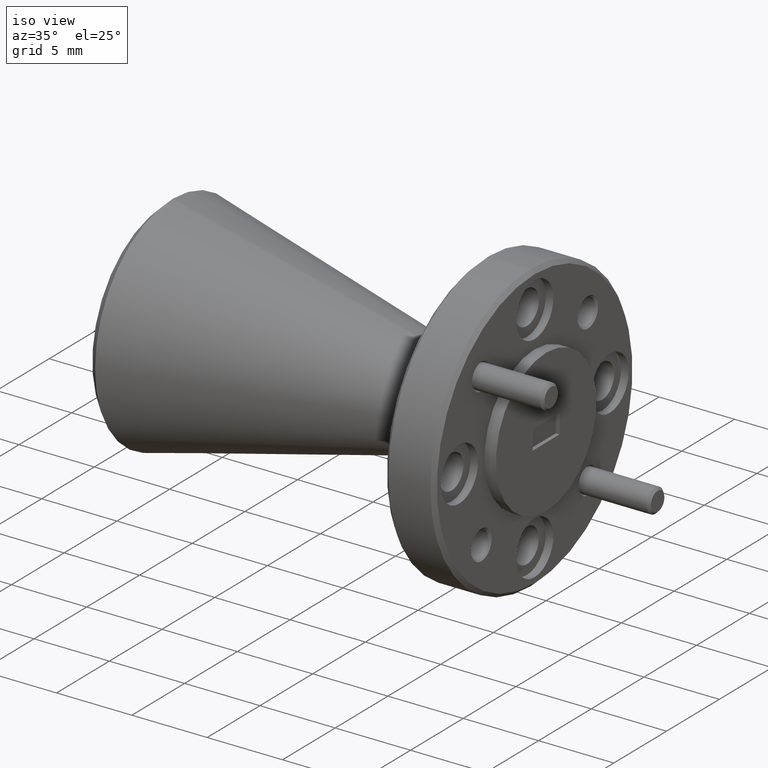
[diagram: clean part render]
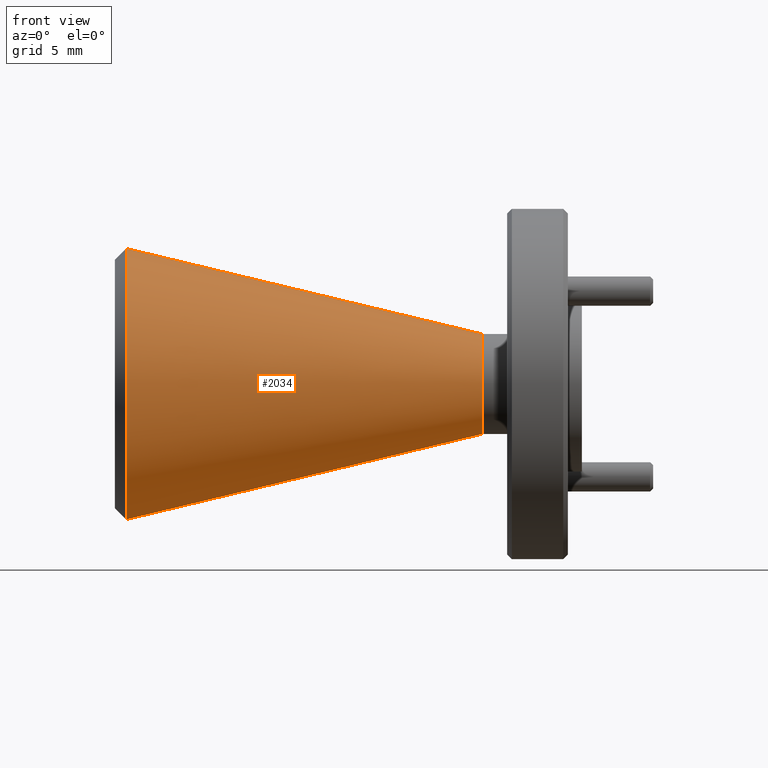
[diagram: tour spotlight — one face highlighted and labeled with its STEP entity id]
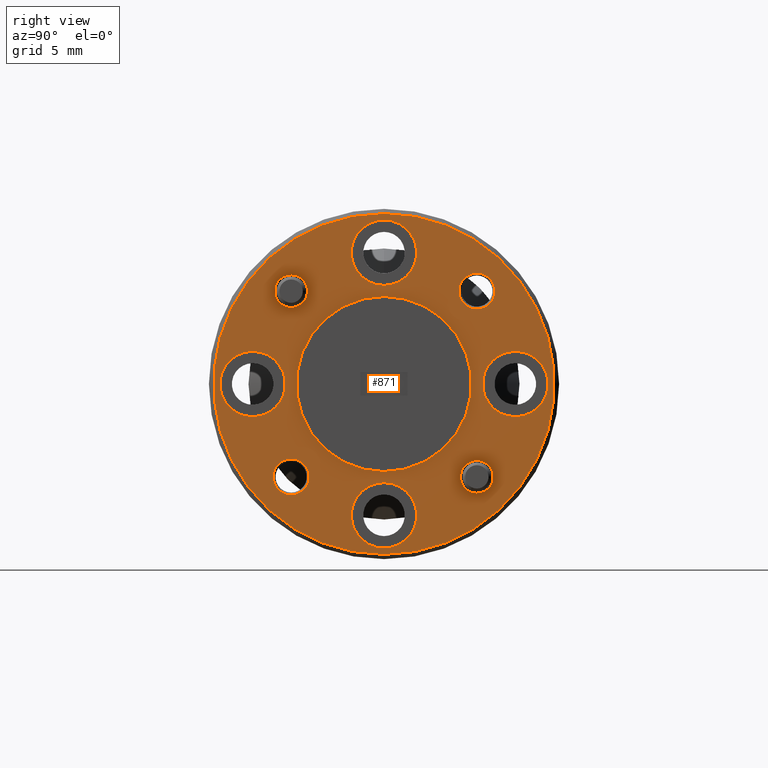
[diagram: tour spotlight — one face highlighted and labeled with its STEP entity id]
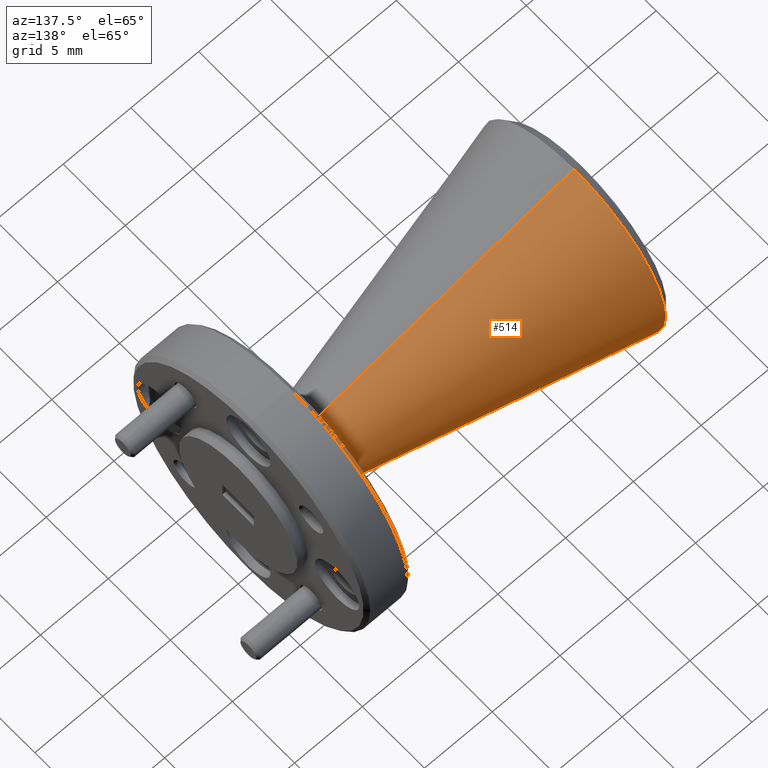
[diagram: tour spotlight — one face highlighted and labeled with its STEP entity id]
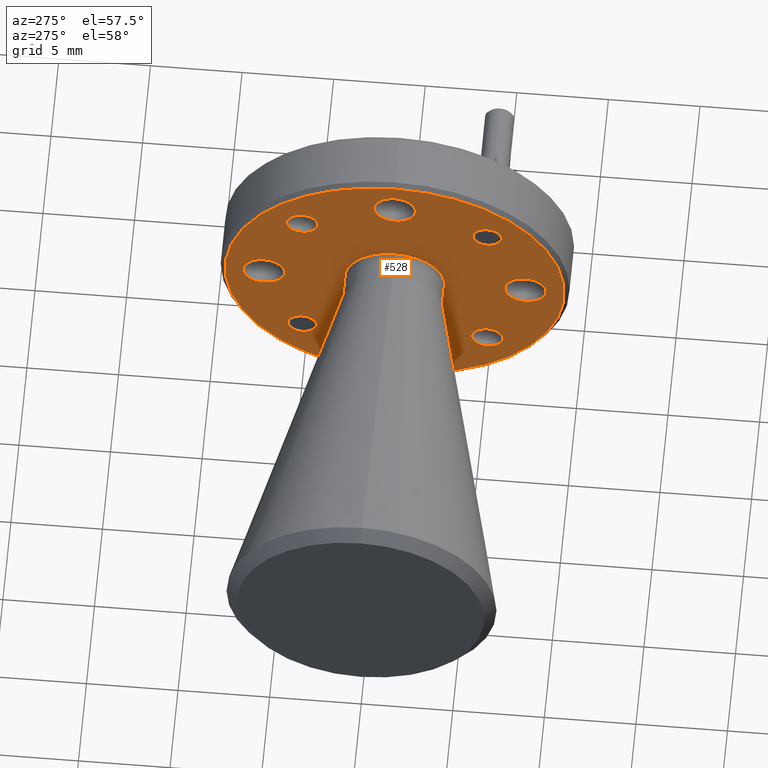
[diagram: tour spotlight — one face highlighted and labeled with its STEP entity id]
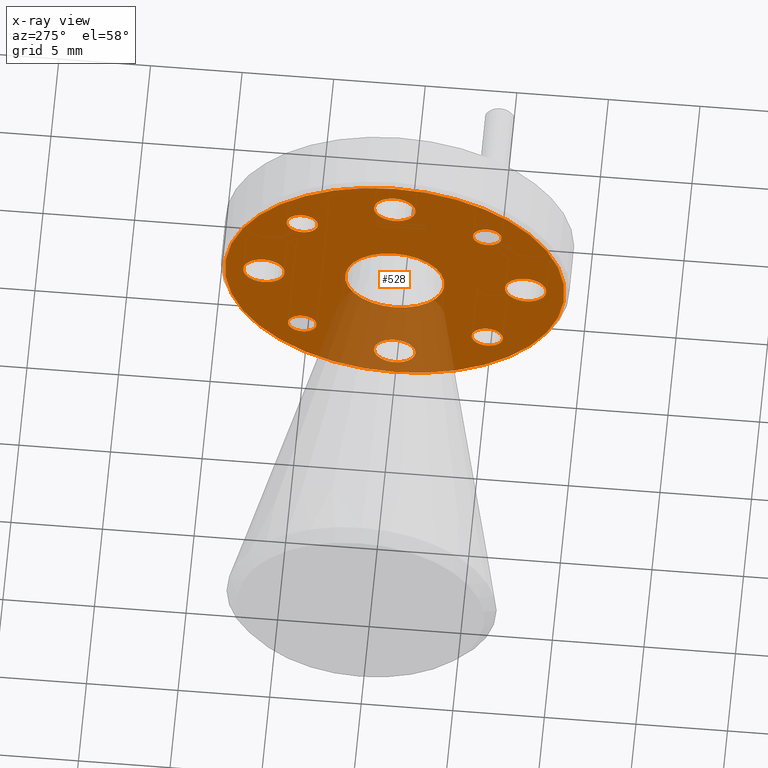
[diagram: x-ray of the same camera — body ghosted, this tour face saturated]
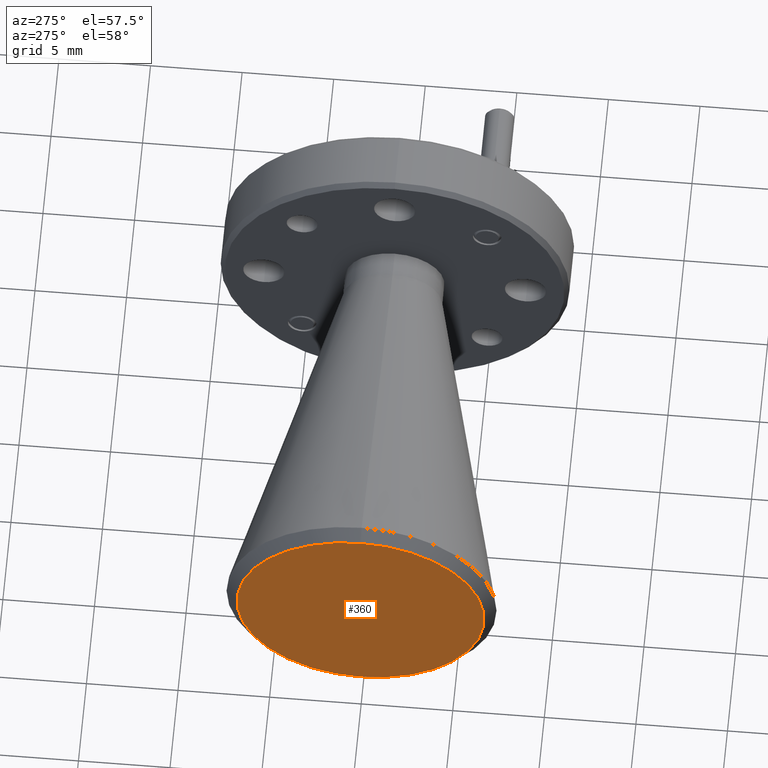
[diagram: tour spotlight — one face highlighted and labeled with its STEP entity id]
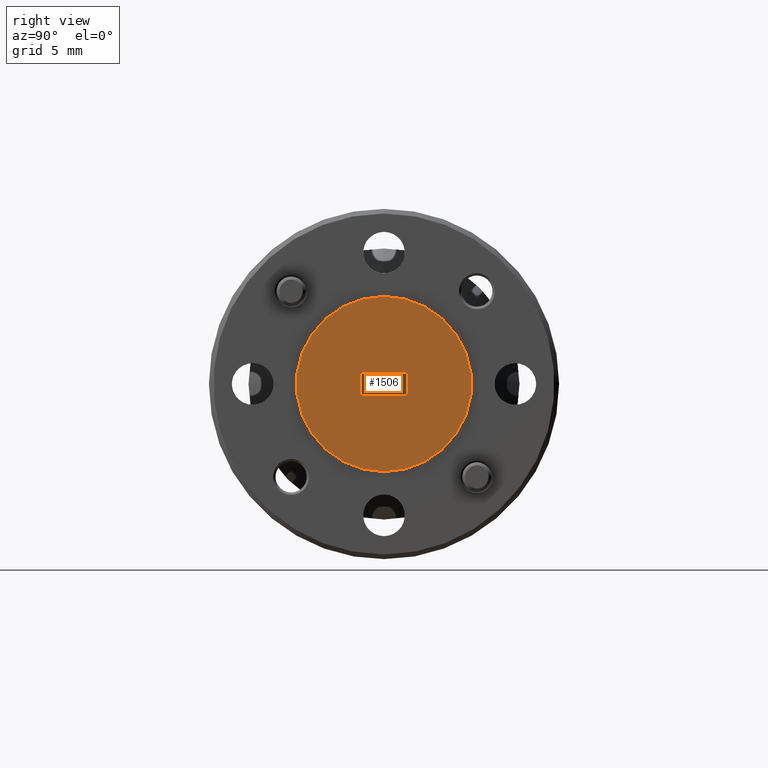
[diagram: tour spotlight — one face highlighted and labeled with its STEP entity id]
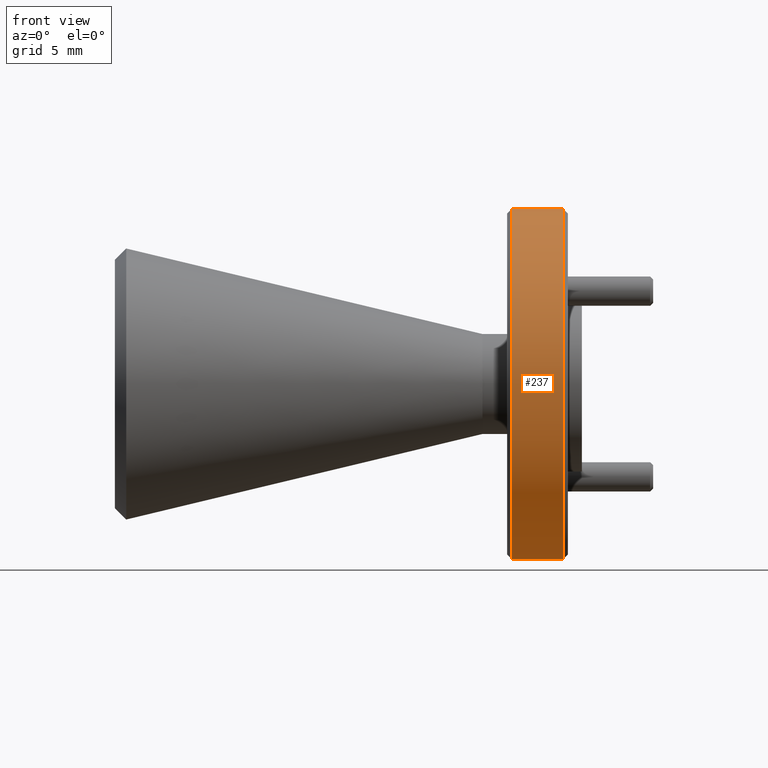
[diagram: tour spotlight — one face highlighted and labeled with its STEP entity id]
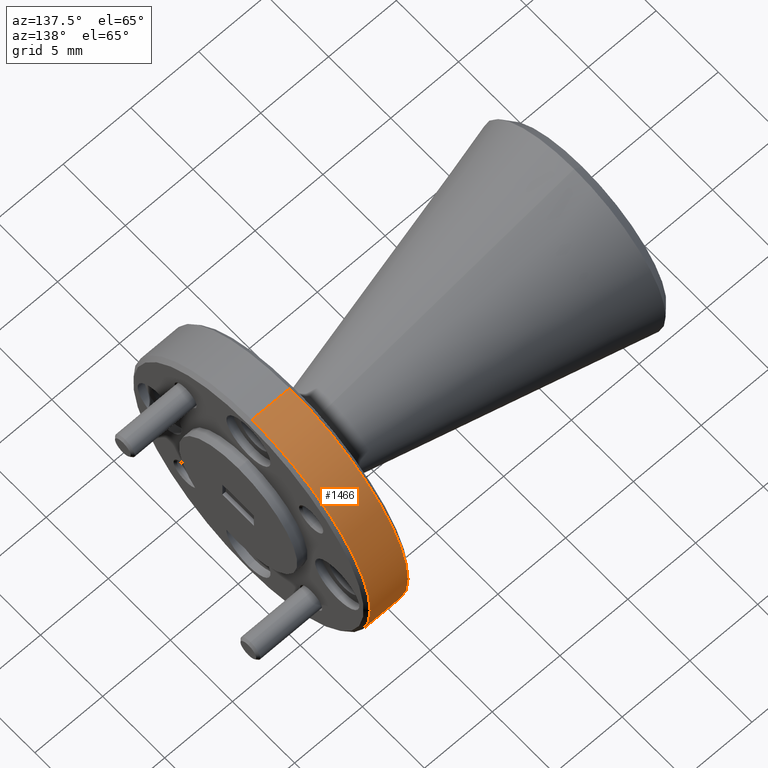
[diagram: tour spotlight — one face highlighted and labeled with its STEP entity id]
A machine part: a face-by-face anatomy tour. The part has 75 B-rep faces; the first image is the clean iso view, then the 8 largest visible faces are spotlighted one at a time (largest first), each with its STEP entity span.

Face 1 — front view, entity #2034. In plain terms, the highlighted conical surface has half-angle 13.5 deg.
Definition (entity closure, byte-faithful):
#200 = DIRECTION ( 'NONE',  ( 0.0000000000000000000, 0.0000000000000000000, 1.000000000000000000 ) ) ;
#369 = CARTESIAN_POINT ( 'NONE',  ( -0.2127583434529240500, 1.310372075087667600E-017, 0.1069999999999999800 ) ) ;
#414 = CARTESIAN_POINT ( 'NONE',  ( -0.2127583434529240500, 0.0000000000000000000, -0.1069999999999999800 ) ) ;
#424 = AXIS2_PLACEMENT_3D ( 'NONE', #1684, #2021, #200 ) ;
#462 = DIRECTION ( 'NONE',  ( -0.9723699203976756700, 2.858881176219283900E-017, -0.2334453638559091700 ) ) ;
#506 = VERTEX_POINT ( 'NONE', #1768 ) ;
#532 = ORIENTED_EDGE ( 'NONE', *, *, #1520, .T. ) ;
#586 = DIRECTION ( 'NONE',  ( -0.9723699203976756700, 0.0000000000000000000, 0.2334453638559091700 ) ) ;
#591 = CARTESIAN_POINT ( 'NONE',  ( -0.2127583434529240500, 0.0000000000000000000, 0.1069999999999999800 ) ) ;
#601 = VECTOR ( 'NONE', #462, 39.37007874015748100 ) ;
#750 = CARTESIAN_POINT ( 'NONE',  ( -0.2127583434529240500, 0.0000000000000000000, 0.0000000000000000000 ) ) ;
#764 = CARTESIAN_POINT ( 'NONE',  ( -0.9758079881779012600, 0.0000000000000000000, 0.0000000000000000000 ) ) ;
#778 = DIRECTION ( 'NONE',  ( 0.0000000000000000000, 0.0000000000000000000, -1.000000000000000000 ) ) ;
#945 = VERTEX_POINT ( 'NONE', #1239 ) ;
#1219 = CONICAL_SURFACE ( 'NONE', #424, 0.1069999999999999800, 0.2356194490192384000 ) ;
#1239 = CARTESIAN_POINT ( 'NONE',  ( -0.9758079881779012600, 0.0000000000000000000, 0.2901920118220990800 ) ) ;
#1278 = DIRECTION ( 'NONE',  ( 1.000000000000000000, -0.0000000000000000000, -0.0000000000000000000 ) ) ;
#1385 = AXIS2_PLACEMENT_3D ( 'NONE', #764, #1595, #1587 ) ;
#1392 = ORIENTED_EDGE ( 'NONE', *, *, #1882, .F. ) ;
#1424 = AXIS2_PLACEMENT_3D ( 'NONE', #750, #1278, #778 ) ;
#1426 = VERTEX_POINT ( 'NONE', #369 ) ;
#1473 = EDGE_LOOP ( 'NONE', ( #1392, #1925, #532, #1845 ) ) ;
#1478 = EDGE_CURVE ( 'NONE', #1426, #1531, #1887, .T. ) ;
#1498 = EDGE_CURVE ( 'NONE', #945, #506, #2043, .T. ) ;
#1520 = EDGE_CURVE ( 'NONE', #1426, #945, #1781, .T. ) ;
#1531 = VERTEX_POINT ( 'NONE', #414 ) ;
#1587 = DIRECTION ( 'NONE',  ( 0.0000000000000000000, 0.0000000000000000000, -1.000000000000000000 ) ) ;
#1595 = DIRECTION ( 'NONE',  ( 1.000000000000000000, -0.0000000000000000000, -0.0000000000000000000 ) ) ;
#1611 = VECTOR ( 'NONE', #586, 39.37007874015748100 ) ;
#1639 = CARTESIAN_POINT ( 'NONE',  ( -0.2127583434529240500, 1.310372075087667600E-017, -0.1069999999999999800 ) ) ;
#1684 = CARTESIAN_POINT ( 'NONE',  ( -0.2127583434529240500, 0.0000000000000000000, 0.0000000000000000000 ) ) ;
#1768 = CARTESIAN_POINT ( 'NONE',  ( -0.9758079881779012600, 3.553827184160644900E-017, -0.2901920118220990800 ) ) ;
#1781 = LINE ( 'NONE', #591, #1611 ) ;
#1795 = FACE_OUTER_BOUND ( 'NONE', #1473, .T. ) ;
#1845 = ORIENTED_EDGE ( 'NONE', *, *, #1498, .T. ) ;
#1882 = EDGE_CURVE ( 'NONE', #1531, #506, #2115, .T. ) ;
#1887 = CIRCLE ( 'NONE', #1424, 0.1069999999999999800 ) ;
#1925 = ORIENTED_EDGE ( 'NONE', *, *, #1478, .F. ) ;
#2021 = DIRECTION ( 'NONE',  ( -1.000000000000000000, 0.0000000000000000000, 0.0000000000000000000 ) ) ;
#2034 = ADVANCED_FACE ( 'NONE', ( #1795 ), #1219, .T. ) ;
#2043 = CIRCLE ( 'NONE', #1385, 0.2901920118220990800 ) ;
#2115 = LINE ( 'NONE', #1639, #601 ) ;

Face 2 — right view, entity #871. In plain terms, the highlighted planar face has unit normal (1, 0, -0).
Definition (entity closure, byte-faithful):
#5 = DIRECTION ( 'NONE',  ( 1.000000000000000000, 0.0000000000000000000, 0.0000000000000000000 ) ) ;
#35 = DIRECTION ( 'NONE',  ( 1.000000000000000000, -0.0000000000000000000, -0.0000000000000000000 ) ) ;
#62 = CARTESIAN_POINT ( 'NONE',  ( -0.02999999999999999500, -0.2812500000000000600, 0.0000000000000000000 ) ) ;
#72 = AXIS2_PLACEMENT_3D ( 'NONE', #1594, #2078, #1786 ) ;
#77 = CIRCLE ( 'NONE', #1546, 0.07000000000000000700 ) ;
#93 = EDGE_LOOP ( 'NONE', ( #633, #1059 ) ) ;
#125 = ORIENTED_EDGE ( 'NONE', *, *, #1314, .F. ) ;
#141 = DIRECTION ( 'NONE',  ( 0.0000000000000000000, 0.0000000000000000000, -1.000000000000000000 ) ) ;
#142 = VERTEX_POINT ( 'NONE', #1631 ) ;
#144 = VERTEX_POINT ( 'NONE', #2101 ) ;
#146 = VERTEX_POINT ( 'NONE', #954 ) ;
#156 = CARTESIAN_POINT ( 'NONE',  ( -0.02999999999999999500, 0.0000000000000000000, -0.2812500000000000600 ) ) ;
#161 = CARTESIAN_POINT ( 'NONE',  ( -0.02999999999999999500, 0.2812500000000000600, -0.07000000000000000700 ) ) ;
#162 = CIRCLE ( 'NONE', #1038, 0.07000000000000000700 ) ;
#170 = VERTEX_POINT ( 'NONE', #2107 ) ;
#183 = EDGE_CURVE ( 'NONE', #794, #263, #1316, .T. ) ;
#215 = CARTESIAN_POINT ( 'NONE',  ( -0.02999999999999992600, 0.1988737822087164900, 0.1603737822087164300 ) ) ;
#242 = CARTESIAN_POINT ( 'NONE',  ( -0.02999999999999999500, -0.1988737822087164900, 0.1988737822087164600 ) ) ;
#243 = VERTEX_POINT ( 'NONE', #1491 ) ;
#258 = CARTESIAN_POINT ( 'NONE',  ( -0.02999999999999992600, 0.1988737822087164900, 0.2373737822087164700 ) ) ;
#263 = VERTEX_POINT ( 'NONE', #161 ) ;
#282 = CARTESIAN_POINT ( 'NONE',  ( -0.02999999999999999500, 0.1988737822087164900, -0.2338737822087165200 ) ) ;
#293 = DIRECTION ( 'NONE',  ( 0.0000000000000000000, 0.0000000000000000000, -1.000000000000000000 ) ) ;
#312 = DIRECTION ( 'NONE',  ( 1.000000000000000000, 0.0000000000000000000, 0.0000000000000000000 ) ) ;
#326 = DIRECTION ( 'NONE',  ( 1.000000000000000000, 0.0000000000000000000, 0.0000000000000000000 ) ) ;
#329 = DIRECTION ( 'NONE',  ( 0.0000000000000000000, 0.0000000000000000000, -1.000000000000000000 ) ) ;
#331 = FACE_OUTER_BOUND ( 'NONE', #1141, .T. ) ;
#347 = EDGE_CURVE ( 'NONE', #1395, #1168, #1834, .T. ) ;
#362 = CARTESIAN_POINT ( 'NONE',  ( -0.02999999999999992600, 0.1988737822087164900, 0.1988737822087164600 ) ) ;
#364 = EDGE_LOOP ( 'NONE', ( #2058, #551 ) ) ;
#368 = DIRECTION ( 'NONE',  ( 0.0000000000000000000, 0.0000000000000000000, -1.000000000000000000 ) ) ;
#373 = DIRECTION ( 'NONE',  ( 1.000000000000000000, -0.0000000000000000000, -0.0000000000000000000 ) ) ;
#375 = CARTESIAN_POINT ( 'NONE',  ( -0.02999999999999992600, 0.1988737822087164900, 0.1988737822087164600 ) ) ;
#383 = FACE_BOUND ( 'NONE', #93, .T. ) ;
#396 = EDGE_CURVE ( 'NONE', #1193, #1682, #1963, .T. ) ;
#397 = DIRECTION ( 'NONE',  ( 1.000000000000000000, 0.0000000000000000000, -0.0000000000000000000 ) ) ;
#415 = ORIENTED_EDGE ( 'NONE', *, *, #396, .F. ) ;
#425 = AXIS2_PLACEMENT_3D ( 'NONE', #585, #897, #1868 ) ;
#435 = CIRCLE ( 'NONE', #548, 0.03500000000000000300 ) ;
#453 = DIRECTION ( 'NONE',  ( 0.0000000000000000000, 0.0000000000000000000, -1.000000000000000000 ) ) ;
#461 = EDGE_CURVE ( 'NONE', #142, #146, #540, .T. ) ;
#474 = EDGE_LOOP ( 'NONE', ( #2051, #125 ) ) ;
#479 = AXIS2_PLACEMENT_3D ( 'NONE', #992, #312, #2110 ) ;
#481 = DIRECTION ( 'NONE',  ( 1.000000000000000000, -0.0000000000000000000, -0.0000000000000000000 ) ) ;
#498 = ORIENTED_EDGE ( 'NONE', *, *, #1176, .F. ) ;
#508 = CARTESIAN_POINT ( 'NONE',  ( -0.02999999999999999500, -0.1988737822087164900, 0.1638737822087164600 ) ) ;
#519 = ORIENTED_EDGE ( 'NONE', *, *, #1647, .F. ) ;
#527 = AXIS2_PLACEMENT_3D ( 'NONE', #242, #35, #564 ) ;
#538 = FACE_BOUND ( 'NONE', #775, .T. ) ;
#540 = CIRCLE ( 'NONE', #425, 0.3650000000000002100 ) ;
#548 = AXIS2_PLACEMENT_3D ( 'NONE', #1930, #947, #293 ) ;
#551 = ORIENTED_EDGE ( 'NONE', *, *, #1590, .F. ) ;
#564 = DIRECTION ( 'NONE',  ( 0.0000000000000000000, 0.0000000000000000000, -1.000000000000000000 ) ) ;
#566 = DIRECTION ( 'NONE',  ( 0.0000000000000000000, 0.0000000000000000000, -1.000000000000000000 ) ) ;
#568 = FACE_BOUND ( 'NONE', #474, .T. ) ;
#573 = VERTEX_POINT ( 'NONE', #926 ) ;
#584 = VERTEX_POINT ( 'NONE', #2089 ) ;
#585 = CARTESIAN_POINT ( 'NONE',  ( -0.02999999999999999500, 0.0000000000000000000, 0.0000000000000000000 ) ) ;
#610 = EDGE_CURVE ( 'NONE', #243, #1112, #1591, .T. ) ;
#617 = EDGE_CURVE ( 'NONE', #1748, #1940, #957, .T. ) ;
#633 = ORIENTED_EDGE ( 'NONE', *, *, #1599, .F. ) ;
#646 = CARTESIAN_POINT ( 'NONE',  ( -0.02999999999999999500, -0.2812500000000000600, 0.0000000000000000000 ) ) ;
#659 = CARTESIAN_POINT ( 'NONE',  ( -0.02999999999999999500, 8.572527594031468900E-018, 0.3512500000000000600 ) ) ;
#673 = FACE_BOUND ( 'NONE', #875, .T. ) ;
#674 = CIRCLE ( 'NONE', #1345, 0.1874999999999999700 ) ;
#683 = VERTEX_POINT ( 'NONE', #1635 ) ;
#688 = VERTEX_POINT ( 'NONE', #282 ) ;
#691 = AXIS2_PLACEMENT_3D ( 'NONE', #820, #481, #2149 ) ;
#698 = AXIS2_PLACEMENT_3D ( 'NONE', #2008, #2002, #1030 ) ;
#736 = ORIENTED_EDGE ( 'NONE', *, *, #762, .T. ) ;
#741 = CARTESIAN_POINT ( 'NONE',  ( -0.02999999999999992600, -0.1988737822087164900, -0.1988737822087165200 ) ) ;
#752 = AXIS2_PLACEMENT_3D ( 'NONE', #375, #1709, #1073 ) ;
#762 = EDGE_CURVE ( 'NONE', #146, #142, #2116, .T. ) ;
#775 = EDGE_LOOP ( 'NONE', ( #519, #2136 ) ) ;
#789 = CARTESIAN_POINT ( 'NONE',  ( -0.02999999999999992600, -0.1988737822087164900, -0.1603737822087165100 ) ) ;
#794 = VERTEX_POINT ( 'NONE', #1980 ) ;
#795 = ORIENTED_EDGE ( 'NONE', *, *, #610, .F. ) ;
#807 = FACE_BOUND ( 'NONE', #364, .T. ) ;
#820 = CARTESIAN_POINT ( 'NONE',  ( -0.02999999999999999500, 0.1988737822087164900, -0.1988737822087165200 ) ) ;
#824 = ORIENTED_EDGE ( 'NONE', *, *, #1100, .F. ) ;
#833 = FACE_BOUND ( 'NONE', #1494, .T. ) ;
#851 = DIRECTION ( 'NONE',  ( 1.000000000000000000, 0.0000000000000000000, 0.0000000000000000000 ) ) ;
#853 = CIRCLE ( 'NONE', #752, 0.03850000000000001300 ) ;
#871 = ADVANCED_FACE ( 'NONE', ( #673, #1282, #1257, #383, #833, #568, #1832, #807, #331, #538 ), #1167, .T. ) ;
#873 = DIRECTION ( 'NONE',  ( 0.0000000000000000000, 0.0000000000000000000, -1.000000000000000000 ) ) ;
#875 = EDGE_LOOP ( 'NONE', ( #795, #1792 ) ) ;
#897 = DIRECTION ( 'NONE',  ( 1.000000000000000000, -0.0000000000000000000, -0.0000000000000000000 ) ) ;
#911 = DIRECTION ( 'NONE',  ( 1.000000000000000000, -0.0000000000000000000, -0.0000000000000000000 ) ) ;
#915 = EDGE_CURVE ( 'NONE', #1767, #573, #1363, .T. ) ;
#926 = CARTESIAN_POINT ( 'NONE',  ( -0.02999999999999999500, -0.1988737822087164900, 0.2338737822087164600 ) ) ;
#947 = DIRECTION ( 'NONE',  ( 1.000000000000000000, -0.0000000000000000000, -0.0000000000000000000 ) ) ;
#954 = CARTESIAN_POINT ( 'NONE',  ( -0.02999999999999999500, 4.531193156845207900E-017, -0.3650000000000002100 ) ) ;
#957 = CIRCLE ( 'NONE', #1507, 0.07000000000000000700 ) ;
#981 = CARTESIAN_POINT ( 'NONE',  ( -0.02999999999999999500, 0.0000000000000000000, 0.0000000000000000000 ) ) ;
#992 = CARTESIAN_POINT ( 'NONE',  ( -0.02999999999999999500, 0.0000000000000000000, -0.2812500000000000600 ) ) ;
#1029 = CIRCLE ( 'NONE', #1032, 0.1874999999999999700 ) ;
#1030 = DIRECTION ( 'NONE',  ( 0.0000000000000000000, 0.0000000000000000000, -1.000000000000000000 ) ) ;
#1031 = EDGE_LOOP ( 'NONE', ( #1421, #824 ) ) ;
#1032 = AXIS2_PLACEMENT_3D ( 'NONE', #981, #1960, #1484 ) ;
#1038 = AXIS2_PLACEMENT_3D ( 'NONE', #62, #1425, #1429 ) ;
#1046 = EDGE_CURVE ( 'NONE', #683, #584, #2164, .T. ) ;
#1059 = ORIENTED_EDGE ( 'NONE', *, *, #183, .F. ) ;
#1061 = AXIS2_PLACEMENT_3D ( 'NONE', #741, #911, #566 ) ;
#1068 = DIRECTION ( 'NONE',  ( -0.0000000000000000000, 0.0000000000000000000, -1.000000000000000000 ) ) ;
#1073 = DIRECTION ( 'NONE',  ( 0.0000000000000000000, 0.0000000000000000000, -1.000000000000000000 ) ) ;
#1100 = EDGE_CURVE ( 'NONE', #584, #683, #1608, .T. ) ;
#1110 = EDGE_CURVE ( 'NONE', #144, #688, #1855, .T. ) ;
#1112 = VERTEX_POINT ( 'NONE', #659 ) ;
#1141 = EDGE_LOOP ( 'NONE', ( #2072, #736 ) ) ;
#1167 = PLANE ( 'NONE',  #1899 ) ;
#1168 = VERTEX_POINT ( 'NONE', #258 ) ;
#1176 = EDGE_CURVE ( 'NONE', #1940, #1748, #162, .T. ) ;
#1193 = VERTEX_POINT ( 'NONE', #1588 ) ;
#1196 = CARTESIAN_POINT ( 'NONE',  ( -0.02999999999999999500, -0.2812500000000000600, -0.07000000000000000700 ) ) ;
#1205 = EDGE_CURVE ( 'NONE', #1112, #243, #77, .T. ) ;
#1206 = DIRECTION ( 'NONE',  ( 0.0000000000000000000, 0.0000000000000000000, -1.000000000000000000 ) ) ;
#1210 = AXIS2_PLACEMENT_3D ( 'NONE', #1821, #373, #329 ) ;
#1225 = CARTESIAN_POINT ( 'NONE',  ( -0.02999999999999999500, 0.1874999999999999700, 0.0000000000000000000 ) ) ;
#1234 = CIRCLE ( 'NONE', #691, 0.03500000000000000300 ) ;
#1236 = AXIS2_PLACEMENT_3D ( 'NONE', #2098, #1955, #1467 ) ;
#1249 = AXIS2_PLACEMENT_3D ( 'NONE', #1663, #326, #1515 ) ;
#1257 = FACE_BOUND ( 'NONE', #1031, .T. ) ;
#1282 = FACE_BOUND ( 'NONE', #1627, .T. ) ;
#1300 = CARTESIAN_POINT ( 'NONE',  ( -0.02999999999999999500, 0.0000000000000000000, 0.0000000000000000000 ) ) ;
#1301 = EDGE_LOOP ( 'NONE', ( #2150, #2003 ) ) ;
#1314 = EDGE_CURVE ( 'NONE', #1168, #1395, #853, .T. ) ;
#1316 = CIRCLE ( 'NONE', #1249, 0.07000000000000000700 ) ;
#1345 = AXIS2_PLACEMENT_3D ( 'NONE', #1300, #1773, #453 ) ;
#1357 = CARTESIAN_POINT ( 'NONE',  ( -0.02999999999999999500, 0.0000000000000000000, 0.2812500000000000600 ) ) ;
#1363 = CIRCLE ( 'NONE', #527, 0.03500000000000000300 ) ;
#1374 = AXIS2_PLACEMENT_3D ( 'NONE', #1492, #1950, #141 ) ;
#1395 = VERTEX_POINT ( 'NONE', #215 ) ;
#1421 = ORIENTED_EDGE ( 'NONE', *, *, #1046, .F. ) ;
#1425 = DIRECTION ( 'NONE',  ( 1.000000000000000000, 0.0000000000000000000, 0.0000000000000000000 ) ) ;
#1429 = DIRECTION ( 'NONE',  ( 0.0000000000000000000, 0.0000000000000000000, -1.000000000000000000 ) ) ;
#1467 = DIRECTION ( 'NONE',  ( 0.0000000000000000000, 0.0000000000000000000, -1.000000000000000000 ) ) ;
#1484 = DIRECTION ( 'NONE',  ( 0.0000000000000000000, 0.0000000000000000000, -1.000000000000000000 ) ) ;
#1491 = CARTESIAN_POINT ( 'NONE',  ( -0.02999999999999999500, 0.0000000000000000000, 0.2112500000000000200 ) ) ;
#1492 = CARTESIAN_POINT ( 'NONE',  ( -0.02999999999999992600, -0.1988737822087164900, -0.1988737822087165200 ) ) ;
#1494 = EDGE_LOOP ( 'NONE', ( #415, #1994 ) ) ;
#1497 = CARTESIAN_POINT ( 'NONE',  ( -0.02999999999999999500, -0.2812500000000000600, 0.07000000000000000700 ) ) ;
#1501 = ORIENTED_EDGE ( 'NONE', *, *, #617, .F. ) ;
#1507 = AXIS2_PLACEMENT_3D ( 'NONE', #646, #1943, #1776 ) ;
#1515 = DIRECTION ( 'NONE',  ( 0.0000000000000000000, 0.0000000000000000000, -1.000000000000000000 ) ) ;
#1529 = DIRECTION ( 'NONE',  ( 1.000000000000000000, -0.0000000000000000000, -0.0000000000000000000 ) ) ;
#1546 = AXIS2_PLACEMENT_3D ( 'NONE', #1357, #851, #873 ) ;
#1588 = CARTESIAN_POINT ( 'NONE',  ( -0.02999999999999992600, -0.1988737822087164900, -0.2373737822087165200 ) ) ;
#1590 = EDGE_CURVE ( 'NONE', #573, #1767, #435, .T. ) ;
#1591 = CIRCLE ( 'NONE', #72, 0.07000000000000000700 ) ;
#1594 = CARTESIAN_POINT ( 'NONE',  ( -0.02999999999999999500, 0.0000000000000000000, 0.2812500000000000600 ) ) ;
#1599 = EDGE_CURVE ( 'NONE', #263, #794, #1989, .T. ) ;
#1608 = CIRCLE ( 'NONE', #1957, 0.07000000000000000700 ) ;
#1620 = VERTEX_POINT ( 'NONE', #1961 ) ;
#1627 = EDGE_LOOP ( 'NONE', ( #498, #1501 ) ) ;
#1631 = CARTESIAN_POINT ( 'NONE',  ( -0.02999999999999999500, 0.0000000000000000000, 0.3650000000000002100 ) ) ;
#1632 = CIRCLE ( 'NONE', #1374, 0.03850000000000001300 ) ;
#1635 = CARTESIAN_POINT ( 'NONE',  ( -0.02999999999999999500, 0.0000000000000000000, -0.3512500000000000600 ) ) ;
#1647 = EDGE_CURVE ( 'NONE', #170, #1620, #674, .T. ) ;
#1663 = CARTESIAN_POINT ( 'NONE',  ( -0.02999999999999999500, 0.2812500000000000600, 0.0000000000000000000 ) ) ;
#1682 = VERTEX_POINT ( 'NONE', #789 ) ;
#1709 = DIRECTION ( 'NONE',  ( 1.000000000000000000, -0.0000000000000000000, -0.0000000000000000000 ) ) ;
#1748 = VERTEX_POINT ( 'NONE', #1497 ) ;
#1767 = VERTEX_POINT ( 'NONE', #508 ) ;
#1773 = DIRECTION ( 'NONE',  ( 1.000000000000000000, -0.0000000000000000000, -0.0000000000000000000 ) ) ;
#1776 = DIRECTION ( 'NONE',  ( 0.0000000000000000000, 0.0000000000000000000, -1.000000000000000000 ) ) ;
#1786 = DIRECTION ( 'NONE',  ( 0.0000000000000000000, 0.0000000000000000000, -1.000000000000000000 ) ) ;
#1792 = ORIENTED_EDGE ( 'NONE', *, *, #1205, .F. ) ;
#1799 = EDGE_CURVE ( 'NONE', #688, #144, #1234, .T. ) ;
#1821 = CARTESIAN_POINT ( 'NONE',  ( -0.02999999999999999500, 0.0000000000000000000, 0.0000000000000000000 ) ) ;
#1832 = FACE_BOUND ( 'NONE', #1301, .T. ) ;
#1834 = CIRCLE ( 'NONE', #2005, 0.03850000000000001300 ) ;
#1854 = EDGE_CURVE ( 'NONE', #1682, #1193, #1632, .T. ) ;
#1855 = CIRCLE ( 'NONE', #698, 0.03500000000000000300 ) ;
#1868 = DIRECTION ( 'NONE',  ( 0.0000000000000000000, 0.0000000000000000000, -1.000000000000000000 ) ) ;
#1890 = EDGE_CURVE ( 'NONE', #1620, #170, #1029, .T. ) ;
#1899 = AXIS2_PLACEMENT_3D ( 'NONE', #1225, #397, #1068 ) ;
#1930 = CARTESIAN_POINT ( 'NONE',  ( -0.02999999999999999500, -0.1988737822087164900, 0.1988737822087164600 ) ) ;
#1940 = VERTEX_POINT ( 'NONE', #1196 ) ;
#1943 = DIRECTION ( 'NONE',  ( 1.000000000000000000, 0.0000000000000000000, 0.0000000000000000000 ) ) ;
#1950 = DIRECTION ( 'NONE',  ( 1.000000000000000000, -0.0000000000000000000, -0.0000000000000000000 ) ) ;
#1955 = DIRECTION ( 'NONE',  ( 1.000000000000000000, 0.0000000000000000000, 0.0000000000000000000 ) ) ;
#1957 = AXIS2_PLACEMENT_3D ( 'NONE', #156, #5, #1206 ) ;
#1960 = DIRECTION ( 'NONE',  ( 1.000000000000000000, -0.0000000000000000000, -0.0000000000000000000 ) ) ;
#1961 = CARTESIAN_POINT ( 'NONE',  ( -0.02999999999999999500, 2.296212748401286800E-017, 0.1874999999999999700 ) ) ;
#1963 = CIRCLE ( 'NONE', #1061, 0.03850000000000001300 ) ;
#1980 = CARTESIAN_POINT ( 'NONE',  ( -0.02999999999999999500, 0.2812500000000000600, 0.07000000000000000700 ) ) ;
#1989 = CIRCLE ( 'NONE', #1236, 0.07000000000000000700 ) ;
#1994 = ORIENTED_EDGE ( 'NONE', *, *, #1854, .F. ) ;
#2002 = DIRECTION ( 'NONE',  ( 1.000000000000000000, -0.0000000000000000000, -0.0000000000000000000 ) ) ;
#2003 = ORIENTED_EDGE ( 'NONE', *, *, #1110, .F. ) ;
#2005 = AXIS2_PLACEMENT_3D ( 'NONE', #362, #1529, #368 ) ;
#2008 = CARTESIAN_POINT ( 'NONE',  ( -0.02999999999999999500, 0.1988737822087164900, -0.1988737822087165200 ) ) ;
#2051 = ORIENTED_EDGE ( 'NONE', *, *, #347, .F. ) ;
#2058 = ORIENTED_EDGE ( 'NONE', *, *, #915, .F. ) ;
#2072 = ORIENTED_EDGE ( 'NONE', *, *, #461, .T. ) ;
#2078 = DIRECTION ( 'NONE',  ( 1.000000000000000000, 0.0000000000000000000, 0.0000000000000000000 ) ) ;
#2089 = CARTESIAN_POINT ( 'NONE',  ( -0.02999999999999999500, 8.572527594031468900E-018, -0.2112500000000000200 ) ) ;
#2098 = CARTESIAN_POINT ( 'NONE',  ( -0.02999999999999999500, 0.2812500000000000600, 0.0000000000000000000 ) ) ;
#2101 = CARTESIAN_POINT ( 'NONE',  ( -0.02999999999999999500, 0.1988737822087164900, -0.1638737822087165100 ) ) ;
#2107 = CARTESIAN_POINT ( 'NONE',  ( -0.02999999999999999500, 0.0000000000000000000, -0.1874999999999999700 ) ) ;
#2110 = DIRECTION ( 'NONE',  ( 0.0000000000000000000, 0.0000000000000000000, -1.000000000000000000 ) ) ;
#2116 = CIRCLE ( 'NONE', #1210, 0.3650000000000002100 ) ;
#2136 = ORIENTED_EDGE ( 'NONE', *, *, #1890, .F. ) ;
#2149 = DIRECTION ( 'NONE',  ( 0.0000000000000000000, 0.0000000000000000000, -1.000000000000000000 ) ) ;
#2150 = ORIENTED_EDGE ( 'NONE', *, *, #1799, .F. ) ;
#2164 = CIRCLE ( 'NONE', #479, 0.07000000000000000700 ) ;

Face 3 — auxiliary view, entity #514. In plain terms, the highlighted conical surface has half-angle 13.5 deg.
Definition (entity closure, byte-faithful):
#126 = ORIENTED_EDGE ( 'NONE', *, *, #1882, .T. ) ;
#369 = CARTESIAN_POINT ( 'NONE',  ( -0.2127583434529240500, 1.310372075087667600E-017, 0.1069999999999999800 ) ) ;
#378 = AXIS2_PLACEMENT_3D ( 'NONE', #1749, #444, #1923 ) ;
#414 = CARTESIAN_POINT ( 'NONE',  ( -0.2127583434529240500, 0.0000000000000000000, -0.1069999999999999800 ) ) ;
#444 = DIRECTION ( 'NONE',  ( -1.000000000000000000, 0.0000000000000000000, 0.0000000000000000000 ) ) ;
#458 = DIRECTION ( 'NONE',  ( 1.000000000000000000, -0.0000000000000000000, -0.0000000000000000000 ) ) ;
#462 = DIRECTION ( 'NONE',  ( -0.9723699203976756700, 2.858881176219283900E-017, -0.2334453638559091700 ) ) ;
#494 = AXIS2_PLACEMENT_3D ( 'NONE', #1965, #458, #1307 ) ;
#506 = VERTEX_POINT ( 'NONE', #1768 ) ;
#514 = ADVANCED_FACE ( 'NONE', ( #1103 ), #1487, .T. ) ;
#586 = DIRECTION ( 'NONE',  ( -0.9723699203976756700, 0.0000000000000000000, 0.2334453638559091700 ) ) ;
#591 = CARTESIAN_POINT ( 'NONE',  ( -0.2127583434529240500, 0.0000000000000000000, 0.1069999999999999800 ) ) ;
#601 = VECTOR ( 'NONE', #462, 39.37007874015748100 ) ;
#649 = EDGE_CURVE ( 'NONE', #506, #945, #2093, .T. ) ;
#782 = CIRCLE ( 'NONE', #968, 0.1069999999999999800 ) ;
#892 = ORIENTED_EDGE ( 'NONE', *, *, #1520, .F. ) ;
#945 = VERTEX_POINT ( 'NONE', #1239 ) ;
#968 = AXIS2_PLACEMENT_3D ( 'NONE', #2085, #1092, #1114 ) ;
#1083 = ORIENTED_EDGE ( 'NONE', *, *, #649, .T. ) ;
#1092 = DIRECTION ( 'NONE',  ( 1.000000000000000000, -0.0000000000000000000, -0.0000000000000000000 ) ) ;
#1103 = FACE_OUTER_BOUND ( 'NONE', #1326, .T. ) ;
#1114 = DIRECTION ( 'NONE',  ( 0.0000000000000000000, 0.0000000000000000000, -1.000000000000000000 ) ) ;
#1239 = CARTESIAN_POINT ( 'NONE',  ( -0.9758079881779012600, 0.0000000000000000000, 0.2901920118220990800 ) ) ;
#1307 = DIRECTION ( 'NONE',  ( 0.0000000000000000000, 0.0000000000000000000, -1.000000000000000000 ) ) ;
#1326 = EDGE_LOOP ( 'NONE', ( #1772, #126, #1083, #892 ) ) ;
#1426 = VERTEX_POINT ( 'NONE', #369 ) ;
#1438 = EDGE_CURVE ( 'NONE', #1531, #1426, #782, .T. ) ;
#1487 = CONICAL_SURFACE ( 'NONE', #378, 0.1069999999999999800, 0.2356194490192384000 ) ;
#1520 = EDGE_CURVE ( 'NONE', #1426, #945, #1781, .T. ) ;
#1531 = VERTEX_POINT ( 'NONE', #414 ) ;
#1611 = VECTOR ( 'NONE', #586, 39.37007874015748100 ) ;
#1639 = CARTESIAN_POINT ( 'NONE',  ( -0.2127583434529240500, 1.310372075087667600E-017, -0.1069999999999999800 ) ) ;
#1749 = CARTESIAN_POINT ( 'NONE',  ( -0.2127583434529240500, 0.0000000000000000000, 0.0000000000000000000 ) ) ;
#1768 = CARTESIAN_POINT ( 'NONE',  ( -0.9758079881779012600, 3.553827184160644900E-017, -0.2901920118220990800 ) ) ;
#1772 = ORIENTED_EDGE ( 'NONE', *, *, #1438, .F. ) ;
#1781 = LINE ( 'NONE', #591, #1611 ) ;
#1882 = EDGE_CURVE ( 'NONE', #1531, #506, #2115, .T. ) ;
#1923 = DIRECTION ( 'NONE',  ( 0.0000000000000000000, 0.0000000000000000000, 1.000000000000000000 ) ) ;
#1965 = CARTESIAN_POINT ( 'NONE',  ( -0.9758079881779012600, 0.0000000000000000000, 0.0000000000000000000 ) ) ;
#2085 = CARTESIAN_POINT ( 'NONE',  ( -0.2127583434529240500, 0.0000000000000000000, 0.0000000000000000000 ) ) ;
#2093 = CIRCLE ( 'NONE', #494, 0.2901920118220990800 ) ;
#2115 = LINE ( 'NONE', #1639, #601 ) ;

Face 4 — auxiliary view, entity #528. An x-ray twin of the same camera follows (body ghosted, this face saturated) — the face is partly hidden behind the body. In plain terms, the highlighted planar face has unit normal (-1, 0, 0).
Definition (entity closure, byte-faithful):
#1 = CARTESIAN_POINT ( 'NONE',  ( -0.1600000000000000000, 0.1988737822087164900, -0.1988737822087165200 ) ) ;
#3 = DIRECTION ( 'NONE',  ( -1.000000000000000000, 0.0000000000000000000, 0.0000000000000000000 ) ) ;
#6 = EDGE_LOOP ( 'NONE', ( #713, #2156 ) ) ;
#28 = AXIS2_PLACEMENT_3D ( 'NONE', #1, #1521, #1041 ) ;
#36 = EDGE_LOOP ( 'NONE', ( #64, #1618 ) ) ;
#43 = ORIENTED_EDGE ( 'NONE', *, *, #729, .F. ) ;
#46 = DIRECTION ( 'NONE',  ( -1.000000000000000000, 0.0000000000000000000, 0.0000000000000000000 ) ) ;
#56 = AXIS2_PLACEMENT_3D ( 'NONE', #1715, #213, #575 ) ;
#57 = CARTESIAN_POINT ( 'NONE',  ( -0.1600000000000000000, 0.1988737822087164900, -0.1681237822087165400 ) ) ;
#58 = VERTEX_POINT ( 'NONE', #279 ) ;
#59 = CARTESIAN_POINT ( 'NONE',  ( -0.1600000000000000000, 0.0000000000000000000, 0.2812500000000000600 ) ) ;
#64 = ORIENTED_EDGE ( 'NONE', *, *, #278, .F. ) ;
#71 = CARTESIAN_POINT ( 'NONE',  ( -0.1600000000000000000, 0.1988737822087164900, 0.1988737822087164600 ) ) ;
#75 = DIRECTION ( 'NONE',  ( -1.000000000000000000, 0.0000000000000000000, 0.0000000000000000000 ) ) ;
#90 = AXIS2_PLACEMENT_3D ( 'NONE', #1048, #667, #652 ) ;
#113 = DIRECTION ( 'NONE',  ( -1.000000000000000000, 0.0000000000000000000, 0.0000000000000000000 ) ) ;
#134 = CIRCLE ( 'NONE', #1929, 0.04449999999999975500 ) ;
#150 = DIRECTION ( 'NONE',  ( 0.0000000000000000000, 0.0000000000000000000, 1.000000000000000000 ) ) ;
#160 = EDGE_CURVE ( 'NONE', #943, #401, #276, .T. ) ;
#176 = AXIS2_PLACEMENT_3D ( 'NONE', #829, #1977, #150 ) ;
#178 = CARTESIAN_POINT ( 'NONE',  ( -0.1600000000000000000, -0.1988737822087164900, 0.1681237822087164900 ) ) ;
#192 = CARTESIAN_POINT ( 'NONE',  ( -0.1600000000000000000, -0.1988737822087164900, 0.1988737822087164600 ) ) ;
#198 = EDGE_CURVE ( 'NONE', #491, #1294, #1690, .T. ) ;
#208 = ORIENTED_EDGE ( 'NONE', *, *, #1430, .F. ) ;
#212 = EDGE_CURVE ( 'NONE', #690, #1275, #2015, .T. ) ;
#213 = DIRECTION ( 'NONE',  ( -1.000000000000000000, 0.0000000000000000000, 0.0000000000000000000 ) ) ;
#244 = DIRECTION ( 'NONE',  ( 0.0000000000000000000, 0.0000000000000000000, 1.000000000000000000 ) ) ;
#253 = CIRCLE ( 'NONE', #28, 0.03074999999999997200 ) ;
#254 = ORIENTED_EDGE ( 'NONE', *, *, #160, .F. ) ;
#256 = DIRECTION ( 'NONE',  ( 0.0000000000000000000, 0.0000000000000000000, 1.000000000000000000 ) ) ;
#275 = PLANE ( 'NONE',  #678 ) ;
#276 = CIRCLE ( 'NONE', #1549, 0.03074999999999997200 ) ;
#278 = EDGE_CURVE ( 'NONE', #1275, #690, #910, .T. ) ;
#279 = CARTESIAN_POINT ( 'NONE',  ( -0.1600000000000000000, 5.449678256205688100E-018, -0.2367500000000003200 ) ) ;
#297 = AXIS2_PLACEMENT_3D ( 'NONE', #1503, #1387, #1336 ) ;
#301 = EDGE_CURVE ( 'NONE', #401, #943, #253, .T. ) ;
#322 = DIRECTION ( 'NONE',  ( 0.0000000000000000000, 0.0000000000000000000, 1.000000000000000000 ) ) ;
#328 = CIRCLE ( 'NONE', #602, 0.04449999999999972000 ) ;
#340 = DIRECTION ( 'NONE',  ( -1.000000000000000000, 0.0000000000000000000, 0.0000000000000000000 ) ) ;
#345 = VERTEX_POINT ( 'NONE', #2020 ) ;
#381 = CARTESIAN_POINT ( 'NONE',  ( -0.1600000000000000000, 0.0000000000000000000, -0.2812500000000000600 ) ) ;
#401 = VERTEX_POINT ( 'NONE', #57 ) ;
#405 = EDGE_CURVE ( 'NONE', #1813, #663, #1888, .T. ) ;
#406 = AXIS2_PLACEMENT_3D ( 'NONE', #2157, #3, #1187 ) ;
#440 = CARTESIAN_POINT ( 'NONE',  ( -0.1600000000000000000, 0.1988737822087164900, -0.1988737822087165200 ) ) ;
#454 = EDGE_CURVE ( 'NONE', #1802, #58, #1861, .T. ) ;
#470 = VERTEX_POINT ( 'NONE', #1409 ) ;
#482 = CIRCLE ( 'NONE', #406, 0.3649999999999997700 ) ;
#491 = VERTEX_POINT ( 'NONE', #1560 ) ;
#504 = DIRECTION ( 'NONE',  ( -1.000000000000000000, 0.0000000000000000000, 0.0000000000000000000 ) ) ;
#524 = CARTESIAN_POINT ( 'NONE',  ( -0.1600000000000000000, 0.2812500000000000600, -0.04449999999999972000 ) ) ;
#528 = ADVANCED_FACE ( 'NONE', ( #884, #2120, #2144, #1047, #1711, #1076, #1418, #1914, #2070, #1311 ), #275, .T. ) ;
#535 = DIRECTION ( 'NONE',  ( 1.000000000000000000, -0.0000000000000000000, -0.0000000000000000000 ) ) ;
#542 = VERTEX_POINT ( 'NONE', #946 ) ;
#562 = DIRECTION ( 'NONE',  ( -1.000000000000000000, 0.0000000000000000000, 0.0000000000000000000 ) ) ;
#575 = DIRECTION ( 'NONE',  ( 0.0000000000000000000, 0.0000000000000000000, 1.000000000000000000 ) ) ;
#602 = AXIS2_PLACEMENT_3D ( 'NONE', #1807, #984, #1972 ) ;
#651 = EDGE_LOOP ( 'NONE', ( #254, #1752 ) ) ;
#652 = DIRECTION ( 'NONE',  ( 0.0000000000000000000, 0.0000000000000000000, -1.000000000000000000 ) ) ;
#653 = CARTESIAN_POINT ( 'NONE',  ( -0.1600000000000000000, 0.0000000000000000000, -0.3257499999999998200 ) ) ;
#663 = VERTEX_POINT ( 'NONE', #1629 ) ;
#664 = CARTESIAN_POINT ( 'NONE',  ( -0.1600000000000000000, 0.2812500000000000600, 0.0000000000000000000 ) ) ;
#667 = DIRECTION ( 'NONE',  ( 1.000000000000000000, -0.0000000000000000000, -0.0000000000000000000 ) ) ;
#678 = AXIS2_PLACEMENT_3D ( 'NONE', #783, #75, #1104 ) ;
#680 = VERTEX_POINT ( 'NONE', #1465 ) ;
#690 = VERTEX_POINT ( 'NONE', #1139 ) ;
#706 = CARTESIAN_POINT ( 'NONE',  ( -0.1600000000000000000, -0.1988737822087164900, -0.1988737822087165200 ) ) ;
#713 = ORIENTED_EDGE ( 'NONE', *, *, #454, .F. ) ;
#714 = DIRECTION ( 'NONE',  ( 0.0000000000000000000, 0.0000000000000000000, -1.000000000000000000 ) ) ;
#728 = CARTESIAN_POINT ( 'NONE',  ( -0.1600000000000000000, -0.1988737822087164900, -0.1988737822087165200 ) ) ;
#729 = EDGE_CURVE ( 'NONE', #1675, #680, #1128, .T. ) ;
#735 = DIRECTION ( 'NONE',  ( -1.000000000000000000, 0.0000000000000000000, 0.0000000000000000000 ) ) ;
#754 = AXIS2_PLACEMENT_3D ( 'NONE', #706, #1559, #322 ) ;
#758 = CIRCLE ( 'NONE', #2146, 0.1069999999999999800 ) ;
#767 = CARTESIAN_POINT ( 'NONE',  ( -0.1600000000000000000, 0.0000000000000000000, 0.2812500000000000600 ) ) ;
#783 = CARTESIAN_POINT ( 'NONE',  ( -0.1600000000000000000, 0.3750000000000000600, 0.0000000000000000000 ) ) ;
#804 = AXIS2_PLACEMENT_3D ( 'NONE', #71, #1268, #1428 ) ;
#805 = EDGE_CURVE ( 'NONE', #1063, #542, #758, .T. ) ;
#814 = AXIS2_PLACEMENT_3D ( 'NONE', #728, #562, #913 ) ;
#827 = EDGE_CURVE ( 'NONE', #542, #1063, #1734, .T. ) ;
#829 = CARTESIAN_POINT ( 'NONE',  ( -0.1600000000000000000, -0.1988737822087164900, 0.1988737822087164600 ) ) ;
#834 = AXIS2_PLACEMENT_3D ( 'NONE', #192, #1695, #1360 ) ;
#838 = ORIENTED_EDGE ( 'NONE', *, *, #1192, .F. ) ;
#840 = EDGE_CURVE ( 'NONE', #1740, #345, #1535, .T. ) ;
#884 = FACE_BOUND ( 'NONE', #1347, .T. ) ;
#910 = CIRCLE ( 'NONE', #834, 0.03074999999999997200 ) ;
#913 = DIRECTION ( 'NONE',  ( 0.0000000000000000000, 0.0000000000000000000, 1.000000000000000000 ) ) ;
#923 = AXIS2_PLACEMENT_3D ( 'NONE', #2067, #1913, #1906 ) ;
#942 = DIRECTION ( 'NONE',  ( -1.000000000000000000, 0.0000000000000000000, 0.0000000000000000000 ) ) ;
#943 = VERTEX_POINT ( 'NONE', #1264 ) ;
#946 = CARTESIAN_POINT ( 'NONE',  ( -0.1599999999999999800, 0.0000000000000000000, -0.1069999999999999800 ) ) ;
#984 = DIRECTION ( 'NONE',  ( -1.000000000000000000, 0.0000000000000000000, 0.0000000000000000000 ) ) ;
#993 = CARTESIAN_POINT ( 'NONE',  ( -0.1599999999999999800, 0.0000000000000000000, 0.0000000000000000000 ) ) ;
#996 = ORIENTED_EDGE ( 'NONE', *, *, #1844, .F. ) ;
#1000 = ORIENTED_EDGE ( 'NONE', *, *, #198, .F. ) ;
#1009 = CARTESIAN_POINT ( 'NONE',  ( -0.1600000000000000000, -0.2812500000000000600, -0.04449999999999972000 ) ) ;
#1022 = ORIENTED_EDGE ( 'NONE', *, *, #1217, .T. ) ;
#1041 = DIRECTION ( 'NONE',  ( 0.0000000000000000000, 0.0000000000000000000, 1.000000000000000000 ) ) ;
#1047 = FACE_BOUND ( 'NONE', #36, .T. ) ;
#1048 = CARTESIAN_POINT ( 'NONE',  ( -0.1599999999999999800, 0.0000000000000000000, 0.0000000000000000000 ) ) ;
#1054 = EDGE_LOOP ( 'NONE', ( #1878, #1462 ) ) ;
#1063 = VERTEX_POINT ( 'NONE', #1464 ) ;
#1076 = FACE_BOUND ( 'NONE', #1054, .T. ) ;
#1094 = EDGE_CURVE ( 'NONE', #1573, #2004, #1933, .T. ) ;
#1104 = DIRECTION ( 'NONE',  ( 0.0000000000000000000, 0.0000000000000000000, 1.000000000000000000 ) ) ;
#1119 = CARTESIAN_POINT ( 'NONE',  ( -0.1600000000000000000, 0.0000000000000000000, -0.3649999999999997700 ) ) ;
#1120 = EDGE_CURVE ( 'NONE', #680, #1675, #1454, .T. ) ;
#1128 = CIRCLE ( 'NONE', #754, 0.03349999999999996000 ) ;
#1139 = CARTESIAN_POINT ( 'NONE',  ( -0.1600000000000000000, -0.1988737822087164900, 0.2296237822087164300 ) ) ;
#1158 = EDGE_CURVE ( 'NONE', #58, #1802, #1308, .T. ) ;
#1160 = AXIS2_PLACEMENT_3D ( 'NONE', #1721, #735, #1411 ) ;
#1173 = CARTESIAN_POINT ( 'NONE',  ( -0.1600000000000000000, 0.1988737822087164900, 0.1653737822087164900 ) ) ;
#1186 = CARTESIAN_POINT ( 'NONE',  ( -0.1600000000000000000, 4.531193156845206100E-017, 0.3649999999999997700 ) ) ;
#1187 = DIRECTION ( 'NONE',  ( 0.0000000000000000000, 0.0000000000000000000, 1.000000000000000000 ) ) ;
#1188 = ORIENTED_EDGE ( 'NONE', *, *, #805, .T. ) ;
#1189 = DIRECTION ( 'NONE',  ( 0.0000000000000000000, 0.0000000000000000000, 1.000000000000000000 ) ) ;
#1192 = EDGE_CURVE ( 'NONE', #470, #1524, #134, .T. ) ;
#1217 = EDGE_CURVE ( 'NONE', #2004, #1573, #482, .T. ) ;
#1224 = AXIS2_PLACEMENT_3D ( 'NONE', #664, #340, #1825 ) ;
#1246 = DIRECTION ( 'NONE',  ( -1.000000000000000000, 0.0000000000000000000, 0.0000000000000000000 ) ) ;
#1264 = CARTESIAN_POINT ( 'NONE',  ( -0.1600000000000000000, 0.1988737822087164900, -0.2296237822087164900 ) ) ;
#1268 = DIRECTION ( 'NONE',  ( -1.000000000000000000, 0.0000000000000000000, 0.0000000000000000000 ) ) ;
#1275 = VERTEX_POINT ( 'NONE', #178 ) ;
#1286 = EDGE_LOOP ( 'NONE', ( #1803, #1188 ) ) ;
#1294 = VERTEX_POINT ( 'NONE', #524 ) ;
#1308 = CIRCLE ( 'NONE', #923, 0.04449999999999972000 ) ;
#1309 = AXIS2_PLACEMENT_3D ( 'NONE', #1511, #504, #1189 ) ;
#1311 = FACE_BOUND ( 'NONE', #1286, .T. ) ;
#1318 = CARTESIAN_POINT ( 'NONE',  ( -0.1600000000000000000, -0.1988737822087164900, -0.1653737822087165400 ) ) ;
#1336 = DIRECTION ( 'NONE',  ( 0.0000000000000000000, 0.0000000000000000000, 1.000000000000000000 ) ) ;
#1347 = EDGE_LOOP ( 'NONE', ( #1894, #43 ) ) ;
#1360 = DIRECTION ( 'NONE',  ( 0.0000000000000000000, 0.0000000000000000000, 1.000000000000000000 ) ) ;
#1387 = DIRECTION ( 'NONE',  ( -1.000000000000000000, 0.0000000000000000000, 0.0000000000000000000 ) ) ;
#1402 = AXIS2_PLACEMENT_3D ( 'NONE', #381, #46, #244 ) ;
#1403 = EDGE_CURVE ( 'NONE', #663, #1813, #1569, .T. ) ;
#1409 = CARTESIAN_POINT ( 'NONE',  ( -0.1600000000000000000, 0.0000000000000000000, 0.2367500000000003200 ) ) ;
#1411 = DIRECTION ( 'NONE',  ( 0.0000000000000000000, 0.0000000000000000000, 1.000000000000000000 ) ) ;
#1418 = FACE_BOUND ( 'NONE', #1797, .T. ) ;
#1428 = DIRECTION ( 'NONE',  ( 0.0000000000000000000, 0.0000000000000000000, 1.000000000000000000 ) ) ;
#1430 = EDGE_CURVE ( 'NONE', #1524, #470, #1935, .T. ) ;
#1454 = CIRCLE ( 'NONE', #814, 0.03349999999999996000 ) ;
#1462 = ORIENTED_EDGE ( 'NONE', *, *, #1403, .F. ) ;
#1464 = CARTESIAN_POINT ( 'NONE',  ( -0.1599999999999999800, 1.310372075087667600E-017, 0.1069999999999999800 ) ) ;
#1465 = CARTESIAN_POINT ( 'NONE',  ( -0.1600000000000000000, -0.1988737822087164900, -0.2323737822087164900 ) ) ;
#1503 = CARTESIAN_POINT ( 'NONE',  ( -0.1600000000000000000, 0.1988737822087164900, 0.1988737822087164600 ) ) ;
#1511 = CARTESIAN_POINT ( 'NONE',  ( -0.1600000000000000000, 0.0000000000000000000, 0.0000000000000000000 ) ) ;
#1521 = DIRECTION ( 'NONE',  ( -1.000000000000000000, 0.0000000000000000000, 0.0000000000000000000 ) ) ;
#1524 = VERTEX_POINT ( 'NONE', #2065 ) ;
#1535 = CIRCLE ( 'NONE', #297, 0.03349999999999996000 ) ;
#1549 = AXIS2_PLACEMENT_3D ( 'NONE', #440, #113, #1931 ) ;
#1559 = DIRECTION ( 'NONE',  ( -1.000000000000000000, 0.0000000000000000000, 0.0000000000000000000 ) ) ;
#1560 = CARTESIAN_POINT ( 'NONE',  ( -0.1600000000000000000, 0.2812500000000000600, 0.04449999999999972000 ) ) ;
#1569 = CIRCLE ( 'NONE', #1160, 0.04449999999999972000 ) ;
#1573 = VERTEX_POINT ( 'NONE', #1119 ) ;
#1618 = ORIENTED_EDGE ( 'NONE', *, *, #212, .F. ) ;
#1629 = CARTESIAN_POINT ( 'NONE',  ( -0.1600000000000000000, -0.2812500000000000600, 0.04449999999999972000 ) ) ;
#1636 = AXIS2_PLACEMENT_3D ( 'NONE', #59, #942, #256 ) ;
#1675 = VERTEX_POINT ( 'NONE', #1318 ) ;
#1690 = CIRCLE ( 'NONE', #1224, 0.04449999999999972000 ) ;
#1691 = EDGE_LOOP ( 'NONE', ( #1819, #1000 ) ) ;
#1695 = DIRECTION ( 'NONE',  ( -1.000000000000000000, 0.0000000000000000000, 0.0000000000000000000 ) ) ;
#1711 = FACE_BOUND ( 'NONE', #6, .T. ) ;
#1715 = CARTESIAN_POINT ( 'NONE',  ( -0.1600000000000000000, -0.2812500000000000600, 0.0000000000000000000 ) ) ;
#1721 = CARTESIAN_POINT ( 'NONE',  ( -0.1600000000000000000, -0.2812500000000000600, 0.0000000000000000000 ) ) ;
#1734 = CIRCLE ( 'NONE', #90, 0.1069999999999999800 ) ;
#1740 = VERTEX_POINT ( 'NONE', #1173 ) ;
#1742 = EDGE_LOOP ( 'NONE', ( #2022, #1022 ) ) ;
#1752 = ORIENTED_EDGE ( 'NONE', *, *, #301, .F. ) ;
#1797 = EDGE_LOOP ( 'NONE', ( #838, #208 ) ) ;
#1802 = VERTEX_POINT ( 'NONE', #653 ) ;
#1803 = ORIENTED_EDGE ( 'NONE', *, *, #827, .T. ) ;
#1807 = CARTESIAN_POINT ( 'NONE',  ( -0.1600000000000000000, 0.2812500000000000600, 0.0000000000000000000 ) ) ;
#1813 = VERTEX_POINT ( 'NONE', #1009 ) ;
#1815 = EDGE_CURVE ( 'NONE', #1294, #491, #328, .T. ) ;
#1819 = ORIENTED_EDGE ( 'NONE', *, *, #1815, .F. ) ;
#1825 = DIRECTION ( 'NONE',  ( 0.0000000000000000000, 0.0000000000000000000, 1.000000000000000000 ) ) ;
#1844 = EDGE_CURVE ( 'NONE', #345, #1740, #1852, .T. ) ;
#1852 = CIRCLE ( 'NONE', #804, 0.03349999999999996000 ) ;
#1861 = CIRCLE ( 'NONE', #1402, 0.04449999999999972000 ) ;
#1878 = ORIENTED_EDGE ( 'NONE', *, *, #405, .F. ) ;
#1888 = CIRCLE ( 'NONE', #56, 0.04449999999999972000 ) ;
#1891 = EDGE_LOOP ( 'NONE', ( #2023, #996 ) ) ;
#1894 = ORIENTED_EDGE ( 'NONE', *, *, #1120, .F. ) ;
#1906 = DIRECTION ( 'NONE',  ( 0.0000000000000000000, 0.0000000000000000000, 1.000000000000000000 ) ) ;
#1913 = DIRECTION ( 'NONE',  ( -1.000000000000000000, 0.0000000000000000000, 0.0000000000000000000 ) ) ;
#1914 = FACE_BOUND ( 'NONE', #1691, .T. ) ;
#1929 = AXIS2_PLACEMENT_3D ( 'NONE', #767, #1246, #2082 ) ;
#1931 = DIRECTION ( 'NONE',  ( 0.0000000000000000000, 0.0000000000000000000, 1.000000000000000000 ) ) ;
#1933 = CIRCLE ( 'NONE', #1309, 0.3649999999999997700 ) ;
#1935 = CIRCLE ( 'NONE', #1636, 0.04449999999999975500 ) ;
#1972 = DIRECTION ( 'NONE',  ( 0.0000000000000000000, 0.0000000000000000000, 1.000000000000000000 ) ) ;
#1977 = DIRECTION ( 'NONE',  ( -1.000000000000000000, 0.0000000000000000000, 0.0000000000000000000 ) ) ;
#2004 = VERTEX_POINT ( 'NONE', #1186 ) ;
#2015 = CIRCLE ( 'NONE', #176, 0.03074999999999997200 ) ;
#2020 = CARTESIAN_POINT ( 'NONE',  ( -0.1600000000000000000, 0.1988737822087164900, 0.2323737822087164100 ) ) ;
#2022 = ORIENTED_EDGE ( 'NONE', *, *, #1094, .T. ) ;
#2023 = ORIENTED_EDGE ( 'NONE', *, *, #840, .F. ) ;
#2065 = CARTESIAN_POINT ( 'NONE',  ( -0.1600000000000000000, 5.449678256205684300E-018, 0.3257499999999998200 ) ) ;
#2067 = CARTESIAN_POINT ( 'NONE',  ( -0.1600000000000000000, 0.0000000000000000000, -0.2812500000000000600 ) ) ;
#2070 = FACE_OUTER_BOUND ( 'NONE', #1742, .T. ) ;
#2082 = DIRECTION ( 'NONE',  ( 0.0000000000000000000, 0.0000000000000000000, 1.000000000000000000 ) ) ;
#2120 = FACE_BOUND ( 'NONE', #1891, .T. ) ;
#2144 = FACE_BOUND ( 'NONE', #651, .T. ) ;
#2146 = AXIS2_PLACEMENT_3D ( 'NONE', #993, #535, #714 ) ;
#2156 = ORIENTED_EDGE ( 'NONE', *, *, #1158, .F. ) ;
#2157 = CARTESIAN_POINT ( 'NONE',  ( -0.1600000000000000000, 0.0000000000000000000, 0.0000000000000000000 ) ) ;

Face 5 — auxiliary view, entity #360. In plain terms, the highlighted planar face has unit normal (-1, 0, 0).
Definition (entity closure, byte-faithful):
#20 = PLANE ( 'NONE',  #1975 ) ;
#30 = CIRCLE ( 'NONE', #1437, 0.2660000000000004600 ) ;
#63 = EDGE_CURVE ( 'NONE', #1295, #1628, #30, .T. ) ;
#199 = ORIENTED_EDGE ( 'NONE', *, *, #63, .T. ) ;
#360 = ADVANCED_FACE ( 'NONE', ( #761 ), #20, .T. ) ;
#374 = DIRECTION ( 'NONE',  ( -1.000000000000000000, 0.0000000000000000000, 0.0000000000000000000 ) ) ;
#394 = DIRECTION ( 'NONE',  ( -1.000000000000000000, 0.0000000000000000000, 0.0000000000000000000 ) ) ;
#466 = CARTESIAN_POINT ( 'NONE',  ( -1.000000000000000000, 3.405693834946305100E-017, 0.2660000000000004600 ) ) ;
#702 = DIRECTION ( 'NONE',  ( 0.0000000000000000000, 0.0000000000000000000, 1.000000000000000000 ) ) ;
#761 = FACE_OUTER_BOUND ( 'NONE', #2134, .T. ) ;
#786 = DIRECTION ( 'NONE',  ( 0.0000000000000000000, 0.0000000000000000000, 1.000000000000000000 ) ) ;
#849 = ORIENTED_EDGE ( 'NONE', *, *, #1836, .T. ) ;
#1051 = CARTESIAN_POINT ( 'NONE',  ( -1.000000000000000000, 0.2960000000000001500, 0.0000000000000000000 ) ) ;
#1122 = DIRECTION ( 'NONE',  ( -1.000000000000000000, 0.0000000000000000000, 0.0000000000000000000 ) ) ;
#1261 = AXIS2_PLACEMENT_3D ( 'NONE', #2125, #394, #702 ) ;
#1295 = VERTEX_POINT ( 'NONE', #1689 ) ;
#1437 = AXIS2_PLACEMENT_3D ( 'NONE', #1959, #1122, #786 ) ;
#1533 = DIRECTION ( 'NONE',  ( 0.0000000000000000000, 0.0000000000000000000, 1.000000000000000000 ) ) ;
#1628 = VERTEX_POINT ( 'NONE', #466 ) ;
#1689 = CARTESIAN_POINT ( 'NONE',  ( -1.000000000000000000, 0.0000000000000000000, -0.2660000000000004600 ) ) ;
#1836 = EDGE_CURVE ( 'NONE', #1628, #1295, #2092, .T. ) ;
#1959 = CARTESIAN_POINT ( 'NONE',  ( -1.000000000000000000, 0.0000000000000000000, 0.0000000000000000000 ) ) ;
#1975 = AXIS2_PLACEMENT_3D ( 'NONE', #1051, #374, #1533 ) ;
#2092 = CIRCLE ( 'NONE', #1261, 0.2660000000000004600 ) ;
#2125 = CARTESIAN_POINT ( 'NONE',  ( -1.000000000000000000, 0.0000000000000000000, 0.0000000000000000000 ) ) ;
#2134 = EDGE_LOOP ( 'NONE', ( #199, #849 ) ) ;

Face 6 — right view, entity #1506. In plain terms, the highlighted planar face has unit normal (1, 0, -0).
Definition (entity closure, byte-faithful):
#32 = CARTESIAN_POINT ( 'NONE',  ( 0.0000000000000000000, -0.05000000000000000300, 0.02500000000000001500 ) ) ;
#66 = CARTESIAN_POINT ( 'NONE',  ( 0.0000000000000000000, 0.05000000000000000300, -0.02499999999999999100 ) ) ;
#82 = ORIENTED_EDGE ( 'NONE', *, *, #1394, .F. ) ;
#105 = FACE_OUTER_BOUND ( 'NONE', #348, .T. ) ;
#154 = ORIENTED_EDGE ( 'NONE', *, *, #2130, .T. ) ;
#181 = CARTESIAN_POINT ( 'NONE',  ( 0.0000000000000000000, -0.05000000000000000300, 0.02500000000000001500 ) ) ;
#235 = LINE ( 'NONE', #32, #712 ) ;
#273 = VECTOR ( 'NONE', #825, 39.37007874015748100 ) ;
#288 = CIRCLE ( 'NONE', #1974, 0.1875000000000000300 ) ;
#332 = FACE_BOUND ( 'NONE', #639, .T. ) ;
#346 = VERTEX_POINT ( 'NONE', #354 ) ;
#348 = EDGE_LOOP ( 'NONE', ( #845, #154 ) ) ;
#350 = CARTESIAN_POINT ( 'NONE',  ( 0.0000000000000000000, -0.05000000000000000300, -0.02499999999999999100 ) ) ;
#354 = CARTESIAN_POINT ( 'NONE',  ( 0.0000000000000000000, 2.296212748401287100E-017, 0.1875000000000000300 ) ) ;
#443 = VERTEX_POINT ( 'NONE', #1232 ) ;
#446 = DIRECTION ( 'NONE',  ( -0.0000000000000000000, -1.000000000000000000, -0.0000000000000000000 ) ) ;
#569 = VECTOR ( 'NONE', #1397, 39.37007874015748100 ) ;
#639 = EDGE_LOOP ( 'NONE', ( #82, #686, #922, #1490 ) ) ;
#686 = ORIENTED_EDGE ( 'NONE', *, *, #2161, .F. ) ;
#712 = VECTOR ( 'NONE', #734, 39.37007874015748100 ) ;
#734 = DIRECTION ( 'NONE',  ( 0.0000000000000000000, 0.0000000000000000000, -1.000000000000000000 ) ) ;
#766 = CARTESIAN_POINT ( 'NONE',  ( 0.0000000000000000000, -0.05000000000000000300, 0.02500000000000001500 ) ) ;
#808 = LINE ( 'NONE', #1384, #569 ) ;
#825 = DIRECTION ( 'NONE',  ( -0.0000000000000000000, -0.0000000000000000000, 1.000000000000000000 ) ) ;
#845 = ORIENTED_EDGE ( 'NONE', *, *, #1926, .T. ) ;
#847 = EDGE_CURVE ( 'NONE', #920, #2158, #1886, .T. ) ;
#866 = DIRECTION ( 'NONE',  ( 0.0000000000000000000, 0.0000000000000000000, -1.000000000000000000 ) ) ;
#920 = VERTEX_POINT ( 'NONE', #66 ) ;
#922 = ORIENTED_EDGE ( 'NONE', *, *, #1841, .F. ) ;
#1019 = DIRECTION ( 'NONE',  ( 1.000000000000000000, -0.0000000000000000000, -0.0000000000000000000 ) ) ;
#1145 = VERTEX_POINT ( 'NONE', #181 ) ;
#1211 = DIRECTION ( 'NONE',  ( 1.000000000000000000, -0.0000000000000000000, -0.0000000000000000000 ) ) ;
#1215 = VERTEX_POINT ( 'NONE', #350 ) ;
#1232 = CARTESIAN_POINT ( 'NONE',  ( 0.0000000000000000000, 0.0000000000000000000, -0.1875000000000000300 ) ) ;
#1253 = PLANE ( 'NONE',  #2139 ) ;
#1256 = CARTESIAN_POINT ( 'NONE',  ( 0.0000000000000000000, 0.0000000000000000000, 0.0000000000000000000 ) ) ;
#1370 = CARTESIAN_POINT ( 'NONE',  ( 0.0000000000000000000, 0.0000000000000000000, 0.0000000000000000000 ) ) ;
#1384 = CARTESIAN_POINT ( 'NONE',  ( 0.0000000000000000000, -0.05000000000000000300, -0.02499999999999999100 ) ) ;
#1386 = VECTOR ( 'NONE', #446, 39.37007874015748100 ) ;
#1394 = EDGE_CURVE ( 'NONE', #1215, #920, #808, .T. ) ;
#1397 = DIRECTION ( 'NONE',  ( 0.0000000000000000000, 1.000000000000000000, 0.0000000000000000000 ) ) ;
#1442 = DIRECTION ( 'NONE',  ( -0.0000000000000000000, 0.0000000000000000000, -1.000000000000000000 ) ) ;
#1490 = ORIENTED_EDGE ( 'NONE', *, *, #847, .F. ) ;
#1506 = ADVANCED_FACE ( 'NONE', ( #332, #105 ), #1253, .T. ) ;
#1561 = CARTESIAN_POINT ( 'NONE',  ( 0.0000000000000000000, 0.05000000000000000300, 0.02500000000000001500 ) ) ;
#1589 = AXIS2_PLACEMENT_3D ( 'NONE', #1705, #1211, #1859 ) ;
#1705 = CARTESIAN_POINT ( 'NONE',  ( 0.0000000000000000000, 0.0000000000000000000, 0.0000000000000000000 ) ) ;
#1747 = CIRCLE ( 'NONE', #1589, 0.1875000000000000300 ) ;
#1841 = EDGE_CURVE ( 'NONE', #2158, #1145, #2066, .T. ) ;
#1859 = DIRECTION ( 'NONE',  ( 0.0000000000000000000, 0.0000000000000000000, -1.000000000000000000 ) ) ;
#1886 = LINE ( 'NONE', #2147, #273 ) ;
#1926 = EDGE_CURVE ( 'NONE', #443, #346, #288, .T. ) ;
#1974 = AXIS2_PLACEMENT_3D ( 'NONE', #1370, #1019, #866 ) ;
#2066 = LINE ( 'NONE', #766, #1386 ) ;
#2090 = DIRECTION ( 'NONE',  ( 1.000000000000000000, 0.0000000000000000000, -0.0000000000000000000 ) ) ;
#2130 = EDGE_CURVE ( 'NONE', #346, #443, #1747, .T. ) ;
#2139 = AXIS2_PLACEMENT_3D ( 'NONE', #1256, #2090, #1442 ) ;
#2147 = CARTESIAN_POINT ( 'NONE',  ( 0.0000000000000000000, 0.05000000000000000300, 0.02500000000000001500 ) ) ;
#2158 = VERTEX_POINT ( 'NONE', #1561 ) ;
#2161 = EDGE_CURVE ( 'NONE', #1145, #1215, #235, .T. ) ;

Face 7 — front view, entity #237. In plain terms, the highlighted cylindrical surface (partial cylindrical patch) has radius 9.525 mm, axis along (1, -0, -0).
Definition (entity closure, byte-faithful):
#50 = CARTESIAN_POINT ( 'NONE',  ( 0.0000000000000000000, 0.0000000000000000000, -0.3750000000000000600 ) ) ;
#80 = VECTOR ( 'NONE', #1251, 39.37007874015748100 ) ;
#117 = VERTEX_POINT ( 'NONE', #1779 ) ;
#140 = DIRECTION ( 'NONE',  ( 1.000000000000000000, -0.0000000000000000000, -0.0000000000000000000 ) ) ;
#189 = AXIS2_PLACEMENT_3D ( 'NONE', #1796, #811, #1457 ) ;
#237 = ADVANCED_FACE ( 'NONE', ( #1783 ), #1391, .T. ) ;
#264 = AXIS2_PLACEMENT_3D ( 'NONE', #1688, #998, #516 ) ;
#483 = EDGE_CURVE ( 'NONE', #999, #117, #1338, .T. ) ;
#516 = DIRECTION ( 'NONE',  ( 0.0000000000000000000, 0.0000000000000000000, -1.000000000000000000 ) ) ;
#645 = LINE ( 'NONE', #1482, #1486 ) ;
#655 = CARTESIAN_POINT ( 'NONE',  ( 0.0000000000000000000, 0.0000000000000000000, 0.0000000000000000000 ) ) ;
#692 = EDGE_CURVE ( 'NONE', #2133, #999, #1151, .T. ) ;
#740 = EDGE_LOOP ( 'NONE', ( #1555, #2062, #743, #1722 ) ) ;
#743 = ORIENTED_EDGE ( 'NONE', *, *, #483, .T. ) ;
#811 = DIRECTION ( 'NONE',  ( 1.000000000000000000, -0.0000000000000000000, -0.0000000000000000000 ) ) ;
#819 = CIRCLE ( 'NONE', #264, 0.3750000000000000600 ) ;
#998 = DIRECTION ( 'NONE',  ( -1.000000000000000000, 0.0000000000000000000, 0.0000000000000000000 ) ) ;
#999 = VERTEX_POINT ( 'NONE', #2088 ) ;
#1042 = CARTESIAN_POINT ( 'NONE',  ( -0.04000000000000009100, 4.592425496802575500E-017, 0.3750000000000000600 ) ) ;
#1151 = CIRCLE ( 'NONE', #189, 0.3750000000000000600 ) ;
#1251 = DIRECTION ( 'NONE',  ( 1.000000000000000000, -0.0000000000000000000, -0.0000000000000000000 ) ) ;
#1266 = VERTEX_POINT ( 'NONE', #1042 ) ;
#1338 = LINE ( 'NONE', #50, #80 ) ;
#1391 = CYLINDRICAL_SURFACE ( 'NONE', #1895, 0.3750000000000000600 ) ;
#1457 = DIRECTION ( 'NONE',  ( 0.0000000000000000000, 0.0000000000000000000, 1.000000000000000000 ) ) ;
#1482 = CARTESIAN_POINT ( 'NONE',  ( 0.0000000000000000000, 4.592425496802575500E-017, 0.3750000000000000600 ) ) ;
#1486 = VECTOR ( 'NONE', #1504, 39.37007874015748100 ) ;
#1504 = DIRECTION ( 'NONE',  ( 1.000000000000000000, -0.0000000000000000000, -0.0000000000000000000 ) ) ;
#1555 = ORIENTED_EDGE ( 'NONE', *, *, #1753, .F. ) ;
#1648 = DIRECTION ( 'NONE',  ( 0.0000000000000000000, 0.0000000000000000000, -1.000000000000000000 ) ) ;
#1688 = CARTESIAN_POINT ( 'NONE',  ( -0.04000000000000009100, 0.0000000000000000000, 0.0000000000000000000 ) ) ;
#1722 = ORIENTED_EDGE ( 'NONE', *, *, #1976, .T. ) ;
#1753 = EDGE_CURVE ( 'NONE', #2133, #1266, #645, .T. ) ;
#1779 = CARTESIAN_POINT ( 'NONE',  ( -0.04000000000000009100, 0.0000000000000000000, -0.3750000000000000600 ) ) ;
#1783 = FACE_OUTER_BOUND ( 'NONE', #740, .T. ) ;
#1796 = CARTESIAN_POINT ( 'NONE',  ( -0.1499999999999999100, 0.0000000000000000000, 0.0000000000000000000 ) ) ;
#1870 = CARTESIAN_POINT ( 'NONE',  ( -0.1499999999999999100, 4.592425496802575500E-017, 0.3750000000000000600 ) ) ;
#1895 = AXIS2_PLACEMENT_3D ( 'NONE', #655, #140, #1648 ) ;
#1976 = EDGE_CURVE ( 'NONE', #117, #1266, #819, .T. ) ;
#2062 = ORIENTED_EDGE ( 'NONE', *, *, #692, .T. ) ;
#2088 = CARTESIAN_POINT ( 'NONE',  ( -0.1499999999999999100, 0.0000000000000000000, -0.3750000000000000600 ) ) ;
#2133 = VERTEX_POINT ( 'NONE', #1870 ) ;

Face 8 — auxiliary view, entity #1466. In plain terms, the highlighted cylindrical surface (partial cylindrical patch) has radius 9.525 mm, axis along (1, -0, -0).
Definition (entity closure, byte-faithful):
#13 = AXIS2_PLACEMENT_3D ( 'NONE', #772, #1733, #69 ) ;
#50 = CARTESIAN_POINT ( 'NONE',  ( 0.0000000000000000000, 0.0000000000000000000, -0.3750000000000000600 ) ) ;
#69 = DIRECTION ( 'NONE',  ( 0.0000000000000000000, 0.0000000000000000000, -1.000000000000000000 ) ) ;
#80 = VECTOR ( 'NONE', #1251, 39.37007874015748100 ) ;
#117 = VERTEX_POINT ( 'NONE', #1779 ) ;
#355 = DIRECTION ( 'NONE',  ( 1.000000000000000000, -0.0000000000000000000, -0.0000000000000000000 ) ) ;
#483 = EDGE_CURVE ( 'NONE', #999, #117, #1338, .T. ) ;
#489 = FACE_OUTER_BOUND ( 'NONE', #1025, .T. ) ;
#640 = DIRECTION ( 'NONE',  ( -1.000000000000000000, 0.0000000000000000000, 0.0000000000000000000 ) ) ;
#645 = LINE ( 'NONE', #1482, #1486 ) ;
#682 = EDGE_CURVE ( 'NONE', #1266, #117, #1179, .T. ) ;
#772 = CARTESIAN_POINT ( 'NONE',  ( 0.0000000000000000000, 0.0000000000000000000, 0.0000000000000000000 ) ) ;
#815 = ORIENTED_EDGE ( 'NONE', *, *, #682, .T. ) ;
#983 = CARTESIAN_POINT ( 'NONE',  ( -0.04000000000000009100, 0.0000000000000000000, 0.0000000000000000000 ) ) ;
#994 = ORIENTED_EDGE ( 'NONE', *, *, #1753, .T. ) ;
#999 = VERTEX_POINT ( 'NONE', #2088 ) ;
#1025 = EDGE_LOOP ( 'NONE', ( #1296, #994, #815, #1406 ) ) ;
#1042 = CARTESIAN_POINT ( 'NONE',  ( -0.04000000000000009100, 4.592425496802575500E-017, 0.3750000000000000600 ) ) ;
#1179 = CIRCLE ( 'NONE', #1718, 0.3750000000000000600 ) ;
#1251 = DIRECTION ( 'NONE',  ( 1.000000000000000000, -0.0000000000000000000, -0.0000000000000000000 ) ) ;
#1266 = VERTEX_POINT ( 'NONE', #1042 ) ;
#1279 = EDGE_CURVE ( 'NONE', #999, #2133, #1851, .T. ) ;
#1296 = ORIENTED_EDGE ( 'NONE', *, *, #1279, .T. ) ;
#1329 = DIRECTION ( 'NONE',  ( 0.0000000000000000000, 0.0000000000000000000, -1.000000000000000000 ) ) ;
#1338 = LINE ( 'NONE', #50, #80 ) ;
#1349 = DIRECTION ( 'NONE',  ( 0.0000000000000000000, 0.0000000000000000000, 1.000000000000000000 ) ) ;
#1362 = CARTESIAN_POINT ( 'NONE',  ( -0.1499999999999999100, 0.0000000000000000000, 0.0000000000000000000 ) ) ;
#1406 = ORIENTED_EDGE ( 'NONE', *, *, #483, .F. ) ;
#1466 = ADVANCED_FACE ( 'NONE', ( #489 ), #2117, .T. ) ;
#1482 = CARTESIAN_POINT ( 'NONE',  ( 0.0000000000000000000, 4.592425496802575500E-017, 0.3750000000000000600 ) ) ;
#1486 = VECTOR ( 'NONE', #1504, 39.37007874015748100 ) ;
#1504 = DIRECTION ( 'NONE',  ( 1.000000000000000000, -0.0000000000000000000, -0.0000000000000000000 ) ) ;
#1718 = AXIS2_PLACEMENT_3D ( 'NONE', #983, #640, #1329 ) ;
#1733 = DIRECTION ( 'NONE',  ( 1.000000000000000000, -0.0000000000000000000, -0.0000000000000000000 ) ) ;
#1753 = EDGE_CURVE ( 'NONE', #2133, #1266, #645, .T. ) ;
#1779 = CARTESIAN_POINT ( 'NONE',  ( -0.04000000000000009100, 0.0000000000000000000, -0.3750000000000000600 ) ) ;
#1851 = CIRCLE ( 'NONE', #2073, 0.3750000000000000600 ) ;
#1870 = CARTESIAN_POINT ( 'NONE',  ( -0.1499999999999999100, 4.592425496802575500E-017, 0.3750000000000000600 ) ) ;
#2073 = AXIS2_PLACEMENT_3D ( 'NONE', #1362, #355, #1349 ) ;
#2088 = CARTESIAN_POINT ( 'NONE',  ( -0.1499999999999999100, 0.0000000000000000000, -0.3750000000000000600 ) ) ;
#2117 = CYLINDRICAL_SURFACE ( 'NONE', #13, 0.3750000000000000600 ) ;
#2133 = VERTEX_POINT ( 'NONE', #1870 ) ;